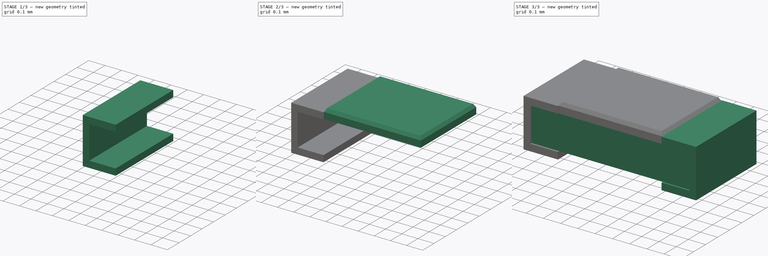
[diagram: build sequence overview — one tinted view per stage of 3, left to right]
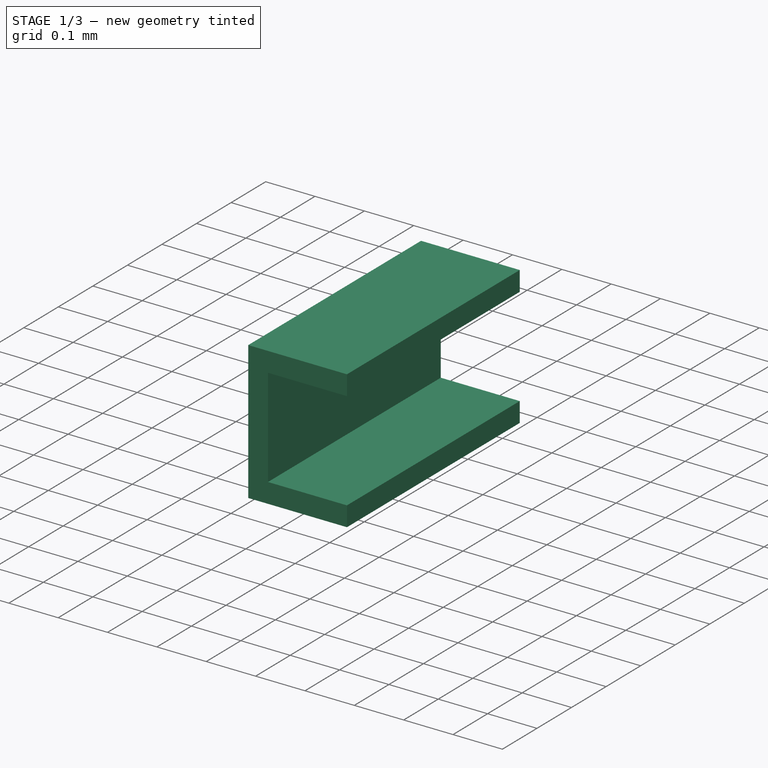
[diagram: stage 1 of 3 — iso view after this stage's code; geometry added in this stage tinted green]
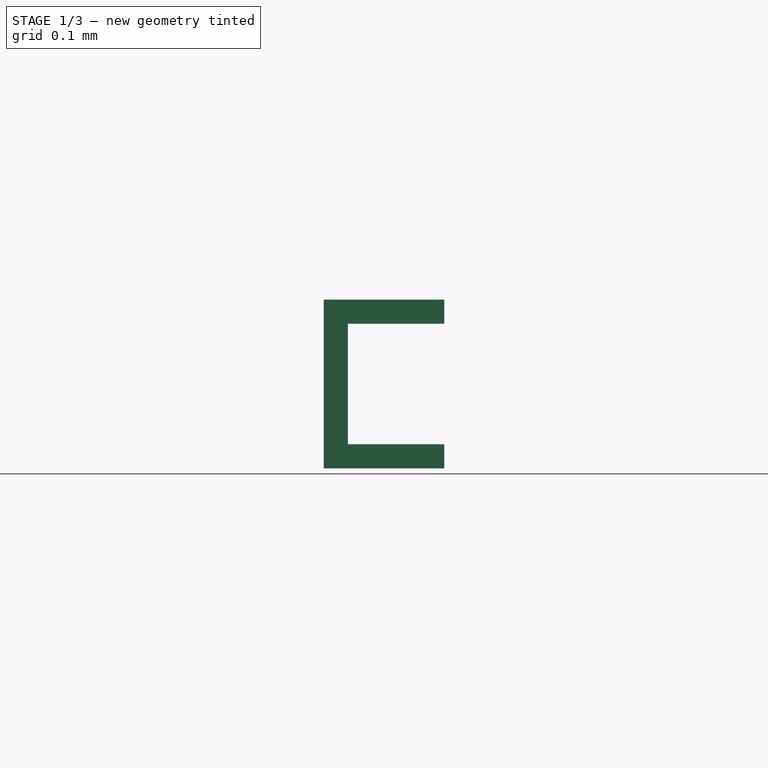
[diagram: stage 1 of 3 — front view after this stage's code; geometry added in this stage tinted green]
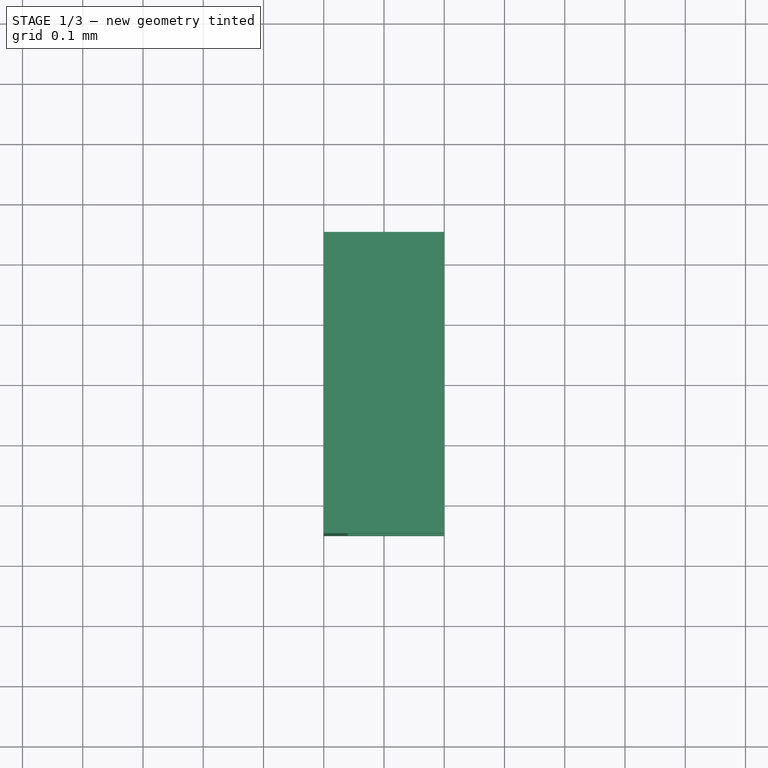
[diagram: stage 1 of 3 — top view after this stage's code; geometry added in this stage tinted green]
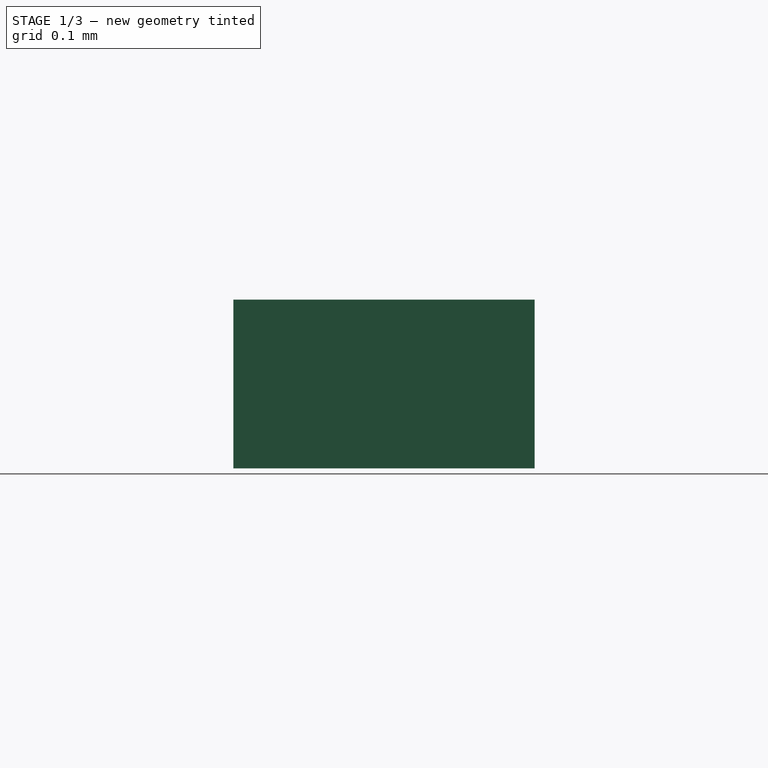
[diagram: stage 1 of 3 — right view after this stage's code; geometry added in this stage tinted green]
FCSTD DOCUMENT  (FreeCAD 0.16R6703 (Git))
Label: R_0402
License: All rights reserved
LicenseURL: http://en.wikipedia.org/wiki/All_rights_reserved
objects: Sketcher::SketchObject×4, Part::FeaturePython×4, Part::Box×1, PartDesign::Pad×1, Part::Mirroring×1, Part::Loft×1, App::DocumentObjectGroup×1
note: 13 computed .brp shape members not serialized (recipe doc carries the construction recipe); baked Part::Feature solids carry a one-line shape summary decoded from their .brp

FEATURE [Sketcher::SketchObject] Sketch
  Placement = pos=(0.3,4.3713e-08,0) rot=(1,0,0;1.5708rad)
  sketch-geometry (9):
    g0: LineSegment StartX=0 StartY=0 StartZ=0 EndX=0.2 EndY=0 EndZ=0
    g1: LineSegment StartX=0.2 StartY=0 StartZ=0 EndX=0.2 EndY=0.28 EndZ=0
    g2: LineSegment StartX=0.2 StartY=0.28 StartZ=0 EndX=0 EndY=0.28 EndZ=0
    g3: LineSegment StartX=0 StartY=0.28 StartZ=0 EndX=0 EndY=0.24 EndZ=0
    g4: LineSegment StartX=0 StartY=0.24 StartZ=0 EndX=0.16 EndY=0.24 EndZ=0
    g5: LineSegment StartX=0.16 StartY=0.24 StartZ=0 EndX=0.16 EndY=0.04 EndZ=0
    g6: LineSegment StartX=0.16 StartY=0.04 StartZ=0 EndX=0 EndY=0.04 EndZ=0
    g7: LineSegment StartX=0 StartY=0.04 StartZ=0 EndX=0 EndY=0 EndZ=0
    g8: LineSegment [constr] StartX=0 StartY=0.14 StartZ=0 EndX=0.16 EndY=0.14 EndZ=0
  constraints (27):
    c: PointOnObject(g0,g-1)
    c: PointOnObject(g0,g-1)
    c: Coincident(g0,g1)
    c: Vertical(g1)
    c: Coincident(g1,g2)
    c: Horizontal(g2)
    c: Coincident(g2,g3)
    c: Vertical(g3)
    c: Coincident(g3,g4)
    c: Horizontal(g4)
    c: Coincident(g4,g5)
    c: Vertical(g5)
    c: Coincident(g5,g6)
    c: Horizontal(g6)
    c: Coincident(g6,g7)
    c: Coincident(g7,g0)
    c: PointOnObject(g8,g5)
    c: PointOnObject(g8,g3)
    c: Symmetric(g0,g1,g8)
    c: Symmetric(g4,g5,g8)
    c: DistanceY(g1,g1) = 0.28
    c: Vertical(g7)
    c: Symmetric(g6,g3,g8)
    c: DistanceX(g0,g0) = 0.2
    c: DistanceY(g7,g7) = 0.04
    c: DistanceX(g5,g0) = 0.04
    c: Coincident(g0,g-1)
FEATURE [PartDesign::Pad] Pad  label="side-src"
  Length = 0.5
  Length2 = 100
  Midplane = true
  Placement = pos=(0.3,4.3713e-08,0) rot=(1,0,0;1.5708rad)
  Sketch = -> Sketch
  Type = 0
FEATURE [Part::Mirroring] Part__Mirroring  label="side-src (Mirror #1)"
  Base = (0,0,0)
  Normal = (1,0,0)
  Source = -> Pad
FEATURE [Part::FeaturePython] Clone003  label="side-left"  # Draft clone (typed FeaturePython)
  Objects = -> [Part__Mirroring]
  Scale = (1,1,1)
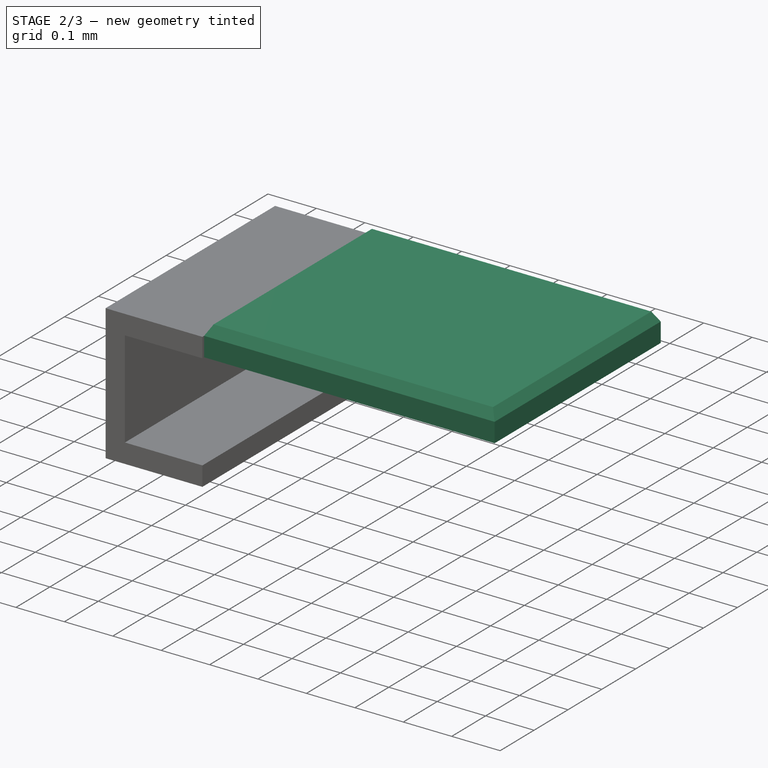
[diagram: stage 2 of 3 — iso view after this stage's code; geometry added in this stage tinted green]
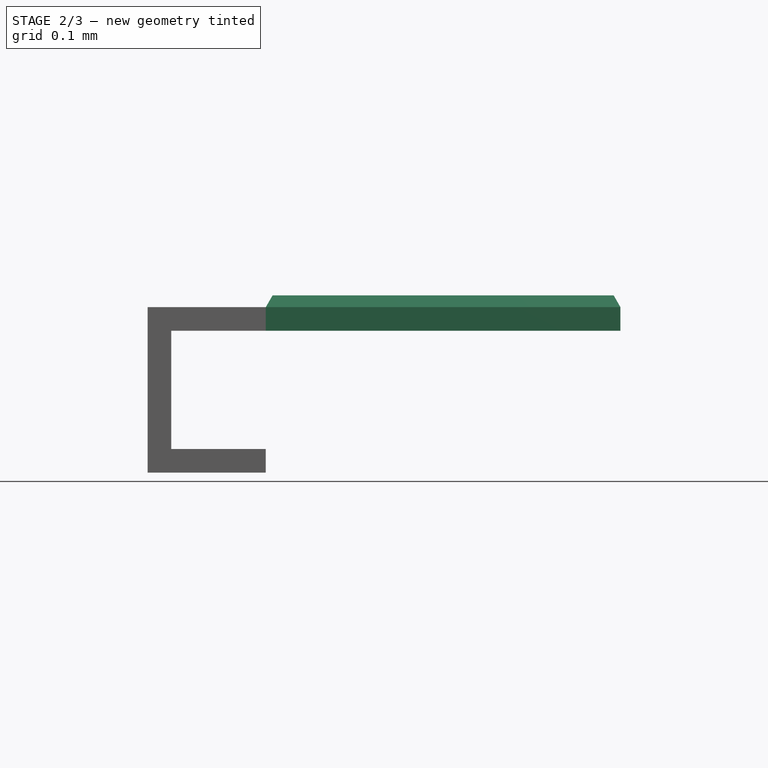
[diagram: stage 2 of 3 — front view after this stage's code; geometry added in this stage tinted green]
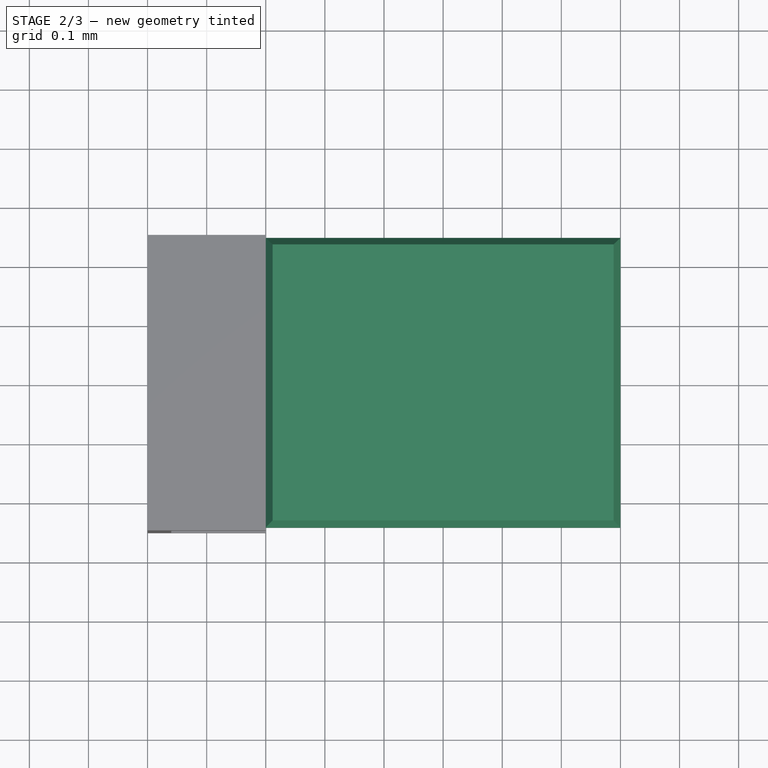
[diagram: stage 2 of 3 — top view after this stage's code; geometry added in this stage tinted green]
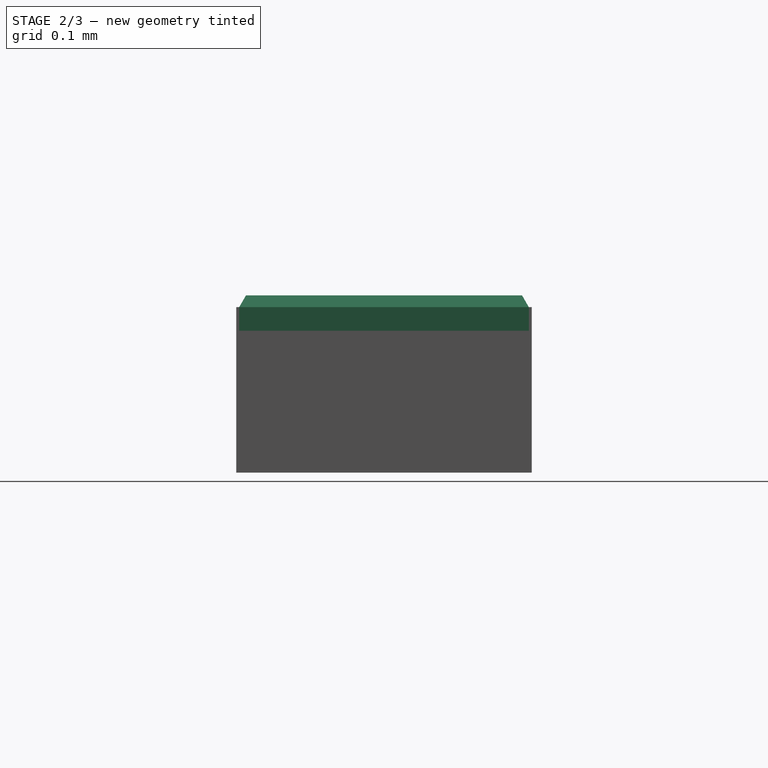
[diagram: stage 2 of 3 — right view after this stage's code; geometry added in this stage tinted green]
FEATURE [Sketcher::SketchObject] Sketch001  label="top-part-bottom-sketch"
  Placement = pos=(2.1418e-08,-2.6225e-08,0.24) rot=(0,0,1;0rad)
  sketch-geometry (4):
    g0: LineSegment StartX=-0.3 StartY=0.245 StartZ=0 EndX=0.3 EndY=0.245 EndZ=0
    g1: LineSegment StartX=0.3 StartY=0.245 StartZ=0 EndX=0.3 EndY=-0.245 EndZ=0
    g2: LineSegment StartX=0.3 StartY=-0.245 StartZ=0 EndX=-0.3 EndY=-0.245 EndZ=0
    g3: LineSegment StartX=-0.3 StartY=-0.245 StartZ=0 EndX=-0.3 EndY=0.245 EndZ=0
  constraints (11):
    c: Coincident(g0,g1)
    c: Coincident(g1,g2)
    c: Coincident(g2,g3)
    c: Coincident(g3,g0)
    c: Horizontal(g0)
    c: Horizontal(g2)
    c: Vertical(g1)
    c: Vertical(g3)
    c: Symmetric(g0,g1,g-1)
    c: DistanceX(g2,g2) = 0.6
    c: DistanceY(g3,g3) = 0.49
FEATURE [Sketcher::SketchObject] Sketch002  label="top-part-middle-sketch"
  Placement = pos=(2.1418e-08,-2.6225e-08,0.28) rot=(0,0,1;0rad)
  sketch-geometry (4):
    g0: LineSegment StartX=-0.3 StartY=0.245 StartZ=0 EndX=0.3 EndY=0.245 EndZ=0
    g1: LineSegment StartX=0.3 StartY=0.245 StartZ=0 EndX=0.3 EndY=-0.245 EndZ=0
    g2: LineSegment StartX=0.3 StartY=-0.245 StartZ=0 EndX=-0.3 EndY=-0.245 EndZ=0
    g3: LineSegment StartX=-0.3 StartY=-0.245 StartZ=0 EndX=-0.3 EndY=0.245 EndZ=0
  constraints (11):
    c: Coincident(g0,g1)
    c: Coincident(g1,g2)
    c: Coincident(g2,g3)
    c: Coincident(g3,g0)
    c: Horizontal(g0)
    c: Horizontal(g2)
    c: Vertical(g1)
    c: Vertical(g3)
    c: Symmetric(g0,g1,g-1)
    c: DistanceX(g2,g2) = 0.6
    c: DistanceY(g3,g3) = 0.49
FEATURE [Sketcher::SketchObject] Sketch003  label="top-part-top-sketch"
  Placement = pos=(4.70258e-05,4.69802e-05,0.3) rot=(0,0,1;0rad)
  sketch-geometry (4):
    g0: LineSegment StartX=-0.2885 StartY=0.2335 StartZ=0 EndX=0.2885 EndY=0.2335 EndZ=0
    g1: LineSegment StartX=0.2885 StartY=0.2335 StartZ=0 EndX=0.2885 EndY=-0.2335 EndZ=0
    g2: LineSegment StartX=0.2885 StartY=-0.2335 StartZ=0 EndX=-0.2885 EndY=-0.2335 EndZ=0
    g3: LineSegment StartX=-0.2885 StartY=-0.2335 StartZ=0 EndX=-0.2885 EndY=0.2335 EndZ=0
  constraints (11):
    c: Coincident(g0,g1)
    c: Coincident(g1,g2)
    c: Coincident(g2,g3)
    c: Coincident(g3,g0)
    c: Horizontal(g0)
    c: Horizontal(g2)
    c: Vertical(g1)
    c: Vertical(g3)
    c: Symmetric(g0,g1,g-1)
    c: DistanceX(g0,g0) = 0.577
    c: DistanceY(g1,g1) = 0.467
FEATURE [Part::Loft] Loft  label="Top-part"
  Closed = false
  Ruled = true
  Sections = -> [Sketch001,Sketch002,Sketch003]
  Solid = true
FEATURE [Part::FeaturePython] Clone002  label="top-part"  # Draft clone (typed FeaturePython)
  Objects = -> [Loft]
  Scale = (1,1,1)
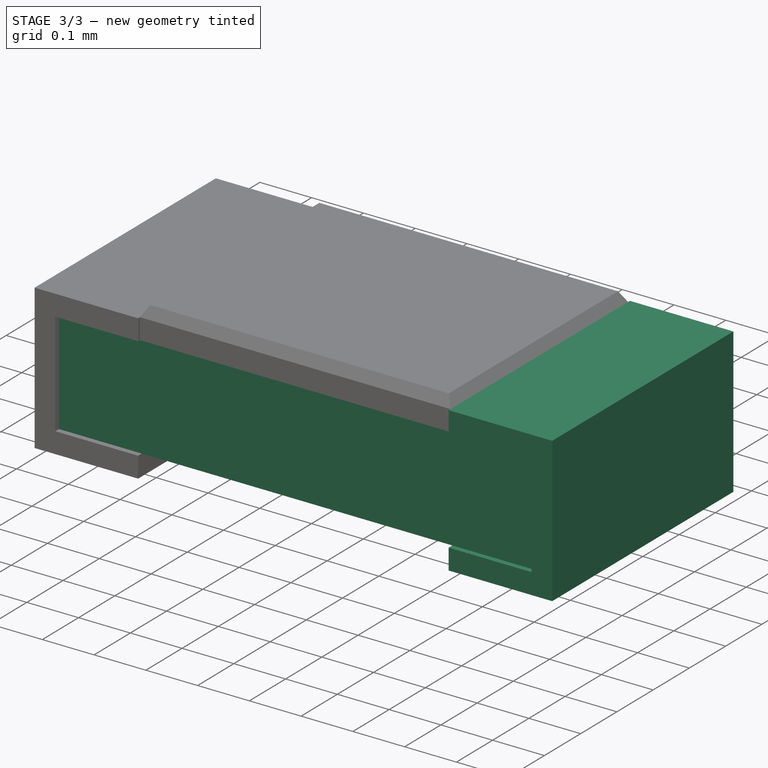
[diagram: stage 3 of 3 — iso view after this stage's code; geometry added in this stage tinted green]
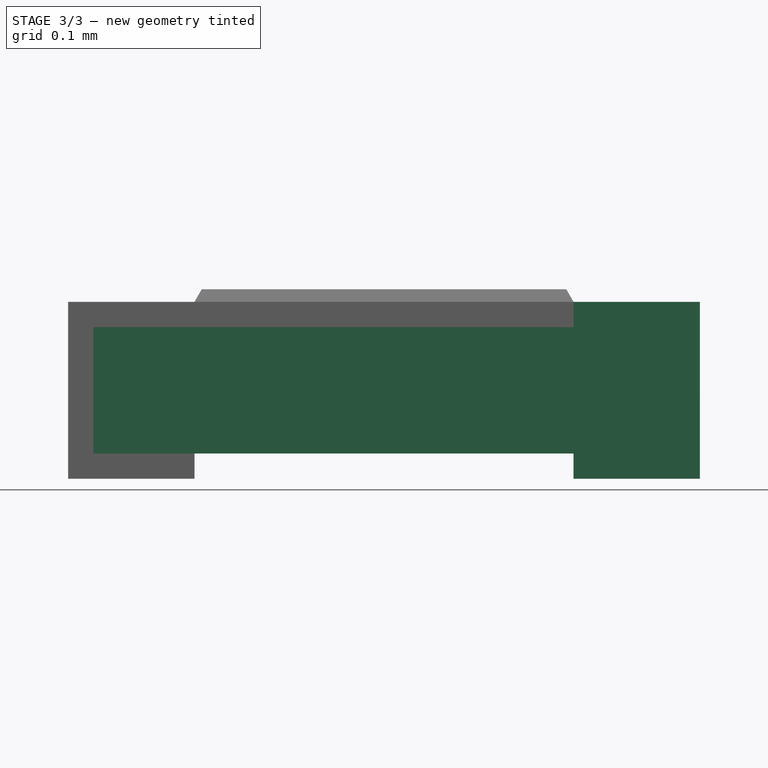
[diagram: stage 3 of 3 — front view after this stage's code; geometry added in this stage tinted green]
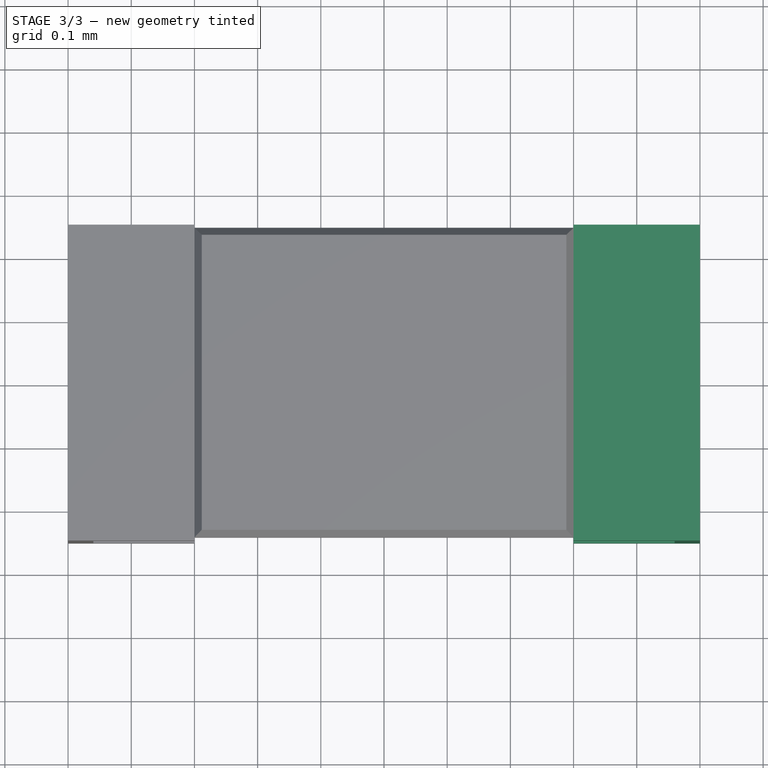
[diagram: stage 3 of 3 — top view after this stage's code; geometry added in this stage tinted green]
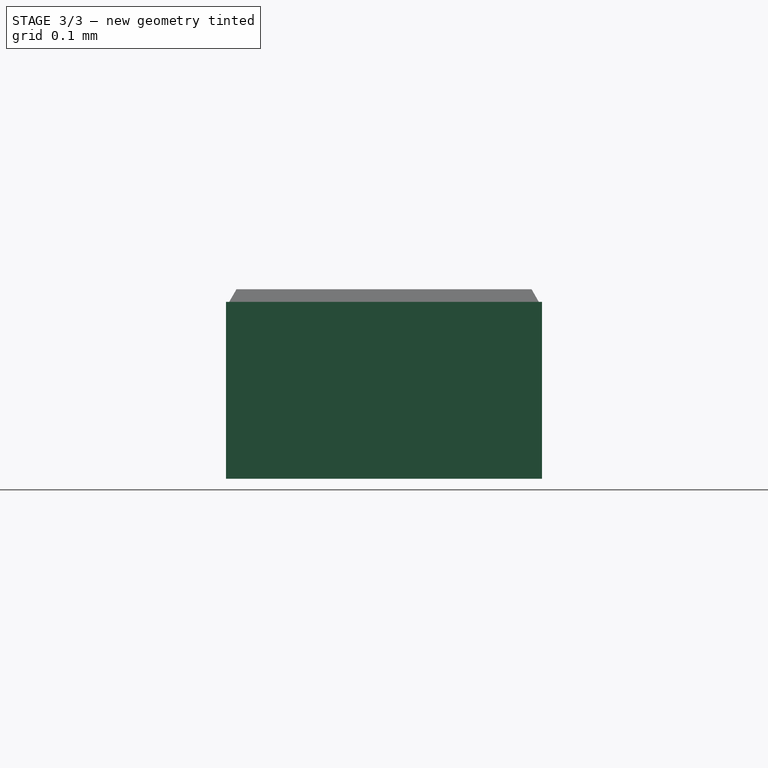
[diagram: stage 3 of 3 — right view after this stage's code; geometry added in this stage tinted green]
FEATURE [Part::Box] Box  label="body-src"
  Height = 0.2
  Length = 0.92
  Placement = pos=(-0.46,-0.24,0.04) rot=(0,0,1;0rad)
  Width = 0.48
FEATURE [App::DocumentObjectGroup] Group  label="src"
  Group = -> [Box,Pad,Part__Mirroring,Loft]
FEATURE [Part::FeaturePython] Clone  label="body"  # Draft clone (typed FeaturePython)
  Objects = -> [Box]
  Placement = pos=(-0.46,-0.24,0.04) rot=(0,0,1;0rad)
  Scale = (1,1,1)
FEATURE [Part::FeaturePython] Clone001  label="side-right"  # Draft clone (typed FeaturePython)
  Objects = -> [Pad]
  Placement = pos=(0.3,4.3713e-08,0) rot=(1,0,0;1.5708rad)
  Scale = (1,1,1)
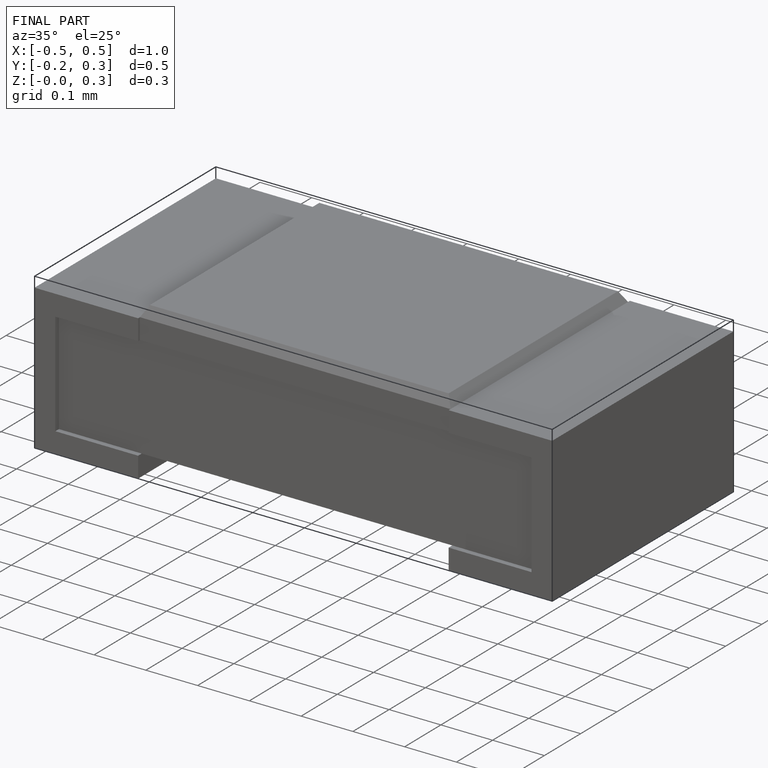
[diagram: finished part — iso view with bounding-box wireframe]
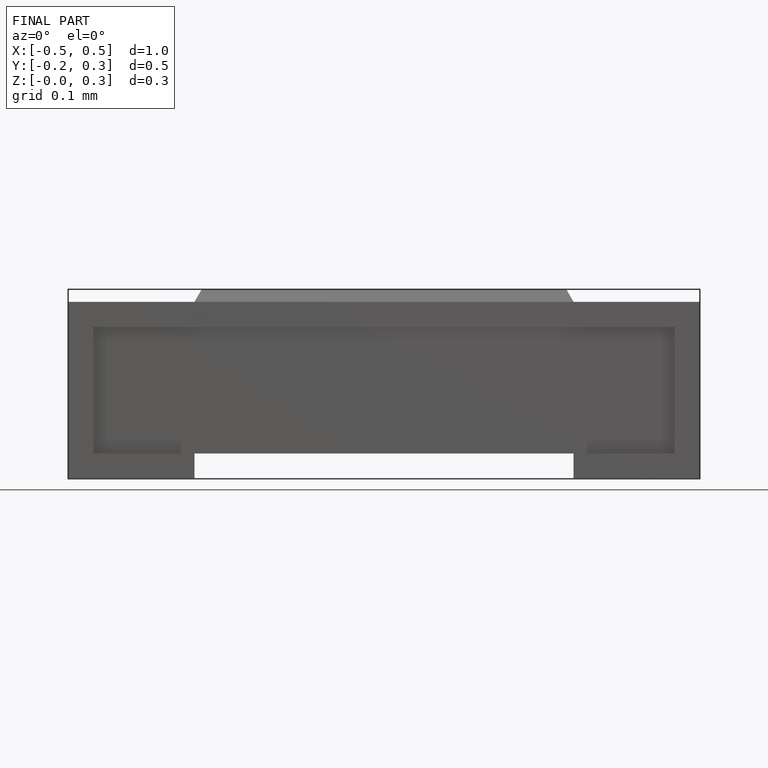
[diagram: finished part — front view with bounding-box wireframe]
